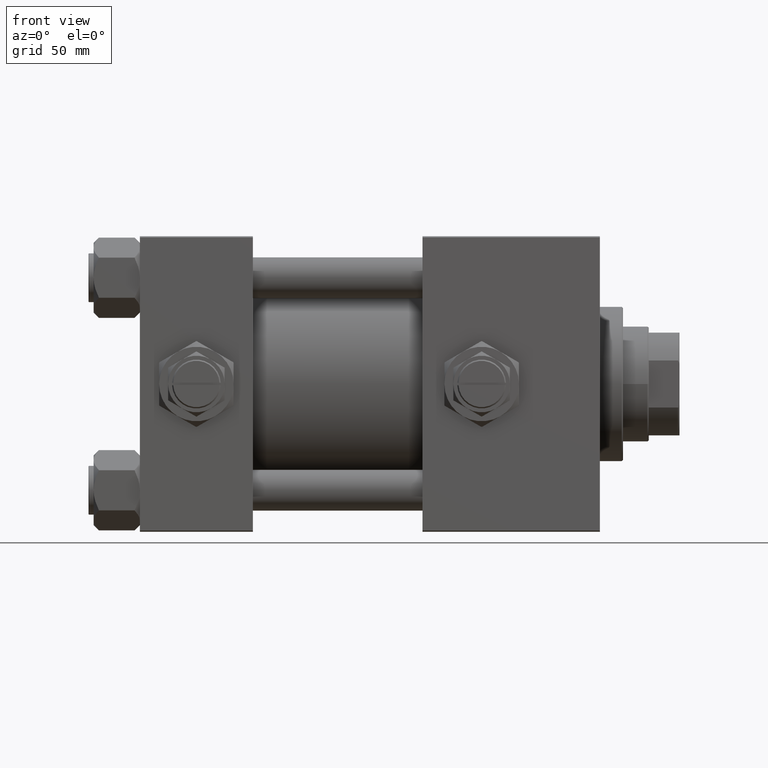
[diagram: clean part render]
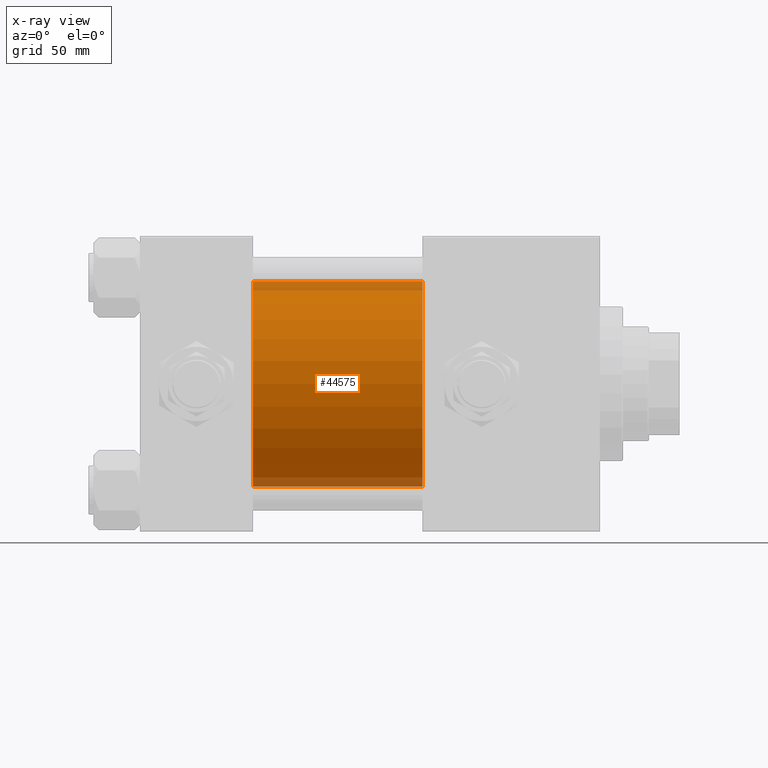
[diagram: x-ray — body ghosted, one internal face saturated and labeled with its STEP entity id]
A machine part, front view, then the same camera in x-ray: the body is ghosted and one INTERNAL B-rep face — a face not visible from any outside direction — is saturated and labeled: STEP entity #44575.
In plain terms, the highlighted cylindrical surface (partial cylindrical patch) has radius 40 mm, axis along (-1, -0, -0).
Its self-contained STEP definition (entity closure, byte-faithful):
#328 = CIRCLE ( 'NONE', #8017, 40.00000000000000000 ) ;
#1445 = CARTESIAN_POINT ( 'NONE',  ( 110.0000000000000000, 2.296501982624201990E-15, -40.00000000000000000 ) ) ;
#1878 = VERTEX_POINT ( 'NONE', #1445 ) ;
#2688 = CYLINDRICAL_SURFACE ( 'NONE', #51212, 40.00000000000000000 ) ;
#3778 = DIRECTION ( 'NONE',  ( 0.000000000000000000, 0.000000000000000000, -1.000000000000000000 ) ) ;
#7458 = LINE ( 'NONE', #20536, #39894 ) ;
#8017 = AXIS2_PLACEMENT_3D ( 'NONE', #49451, #44913, #3778 ) ;
#10085 = VERTEX_POINT ( 'NONE', #26417 ) ;
#11231 = DIRECTION ( 'NONE',  ( 0.000000000000000000, 0.000000000000000000, 1.000000000000000000 ) ) ;
#12759 = EDGE_CURVE ( 'NONE', #45677, #25285, #7458, .T. ) ;
#14147 = CIRCLE ( 'NONE', #44017, 40.00000000000000000 ) ;
#14176 = CARTESIAN_POINT ( 'NONE',  ( 110.0000000000000000, 2.296501982624201990E-15, -40.00000000000000000 ) ) ;
#15725 = DIRECTION ( 'NONE',  ( -1.000000000000000000, -0.000000000000000000, -0.000000000000000000 ) ) ;
#18504 = EDGE_LOOP ( 'NONE', ( #35105, #23558, #26726, #29887 ) ) ;
#18725 = CARTESIAN_POINT ( 'NONE',  ( 110.0000000000000000, -2.602085213965210642E-15, 0.000000000000000000 ) ) ;
#20536 = CARTESIAN_POINT ( 'NONE',  ( 110.0000000000000000, -2.602085213965210642E-15, 40.00000000000000000 ) ) ;
#23558 = ORIENTED_EDGE ( 'NONE', *, *, #47867, .T. ) ;
#25285 = VERTEX_POINT ( 'NONE', #44130 ) ;
#26361 = EDGE_CURVE ( 'NONE', #45677, #1878, #328, .T. ) ;
#26417 = CARTESIAN_POINT ( 'NONE',  ( 44.00000000000000000, 2.296501982624201990E-15, -40.00000000000000000 ) ) ;
#26726 = ORIENTED_EDGE ( 'NONE', *, *, #31146, .F. ) ;
#27454 = VECTOR ( 'NONE', #39268, 1000.000000000000000 ) ;
#29644 = DIRECTION ( 'NONE',  ( 1.000000000000000000, 0.000000000000000000, 0.000000000000000000 ) ) ;
#29887 = ORIENTED_EDGE ( 'NONE', *, *, #12759, .F. ) ;
#30739 = DIRECTION ( 'NONE',  ( -1.000000000000000000, -0.000000000000000000, -0.000000000000000000 ) ) ;
#31146 = EDGE_CURVE ( 'NONE', #25285, #10085, #14147, .T. ) ;
#34429 = CARTESIAN_POINT ( 'NONE',  ( 44.00000000000000000, -2.602085213965210642E-15, 0.000000000000000000 ) ) ;
#34733 = LINE ( 'NONE', #14176, #27454 ) ;
#35105 = ORIENTED_EDGE ( 'NONE', *, *, #26361, .T. ) ;
#39268 = DIRECTION ( 'NONE',  ( -1.000000000000000000, -0.000000000000000000, -0.000000000000000000 ) ) ;
#39288 = CARTESIAN_POINT ( 'NONE',  ( 110.0000000000000000, -2.602085213965210642E-15, 40.00000000000000000 ) ) ;
#39894 = VECTOR ( 'NONE', #15725, 1000.000000000000000 ) ;
#43556 = FACE_OUTER_BOUND ( 'NONE', #18504, .T. ) ;
#44017 = AXIS2_PLACEMENT_3D ( 'NONE', #34429, #29644, #46735 ) ;
#44130 = CARTESIAN_POINT ( 'NONE',  ( 44.00000000000000000, -2.602085213965210642E-15, 40.00000000000000000 ) ) ;
#44575 = ADVANCED_FACE ( 'NONE', ( #43556 ), #2688, .F. ) ;
#44913 = DIRECTION ( 'NONE',  ( 1.000000000000000000, 0.000000000000000000, 0.000000000000000000 ) ) ;
#45677 = VERTEX_POINT ( 'NONE', #39288 ) ;
#46735 = DIRECTION ( 'NONE',  ( 0.000000000000000000, 0.000000000000000000, -1.000000000000000000 ) ) ;
#47867 = EDGE_CURVE ( 'NONE', #1878, #10085, #34733, .T. ) ;
#49451 = CARTESIAN_POINT ( 'NONE',  ( 110.0000000000000000, -2.602085213965210642E-15, 0.000000000000000000 ) ) ;
#51212 = AXIS2_PLACEMENT_3D ( 'NONE', #18725, #30739, #11231 ) ;